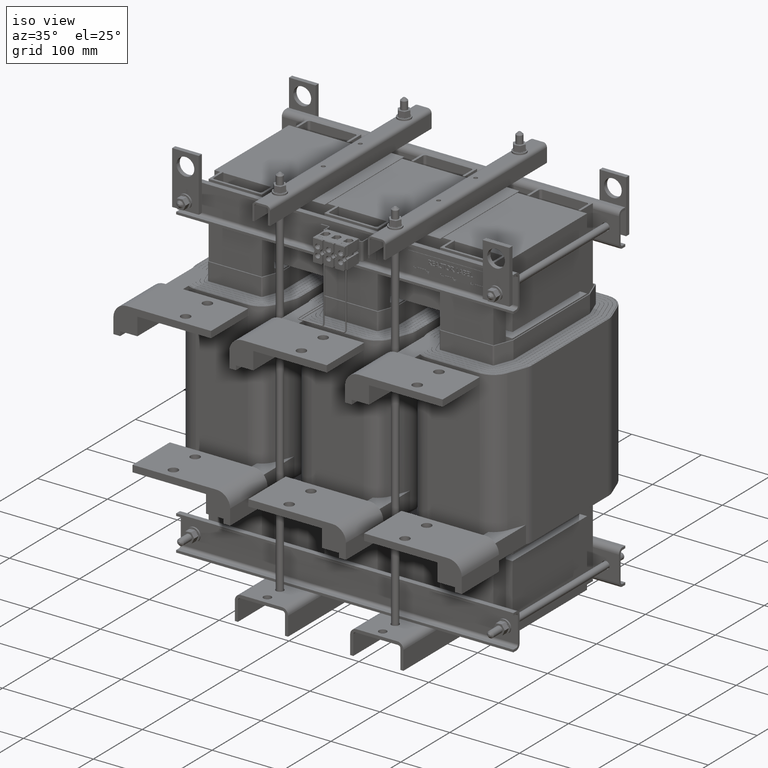
[diagram: clean part render]
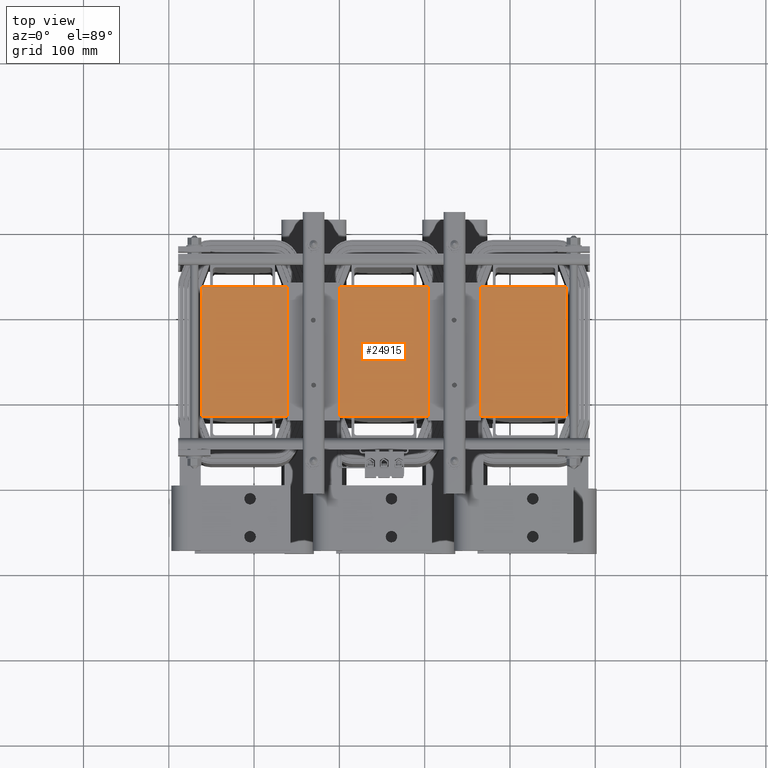
[diagram: tour spotlight — one face highlighted and labeled with its STEP entity id]
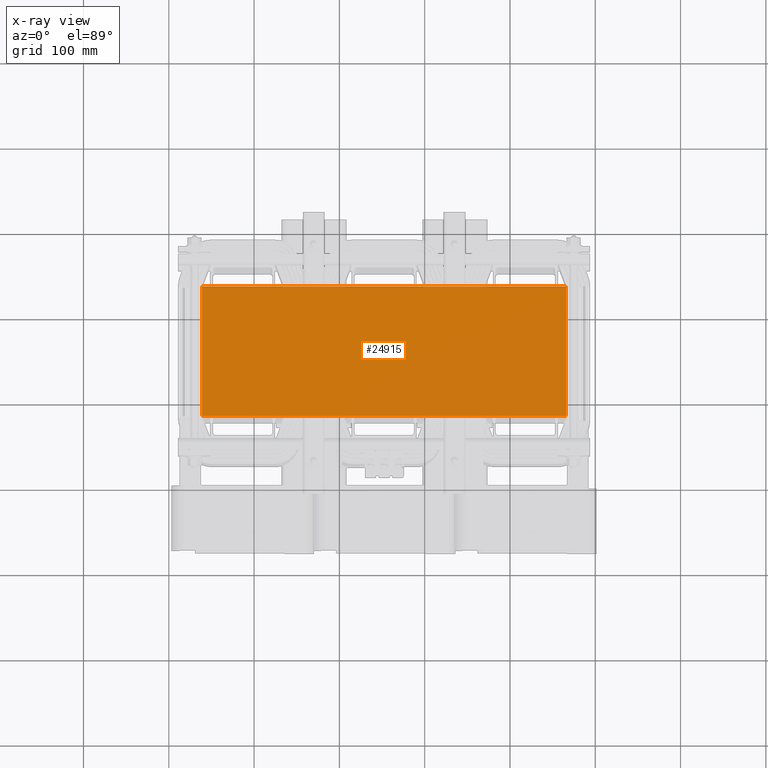
[diagram: x-ray of the same camera — body ghosted, this tour face saturated]
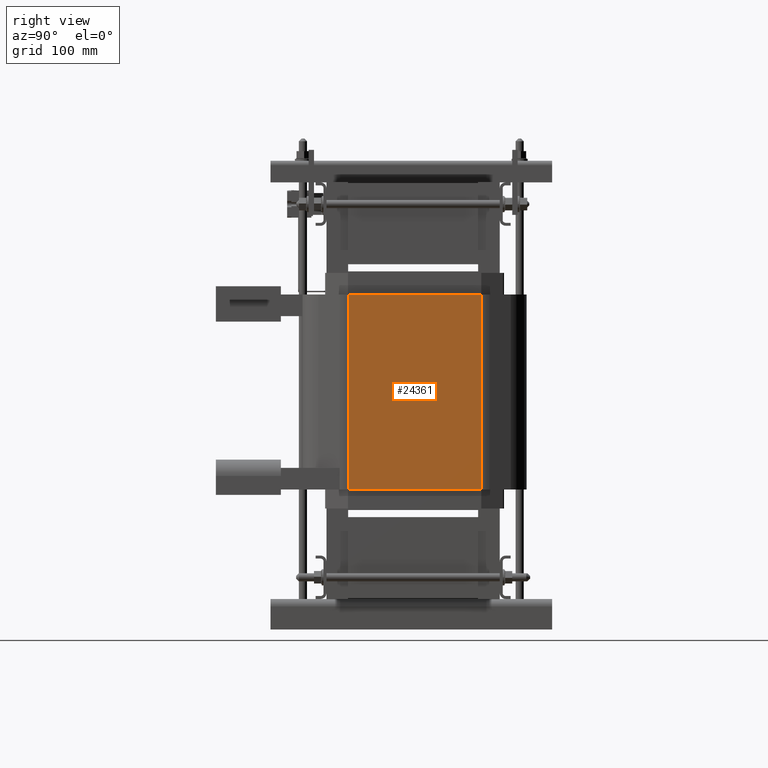
[diagram: tour spotlight — one face highlighted and labeled with its STEP entity id]
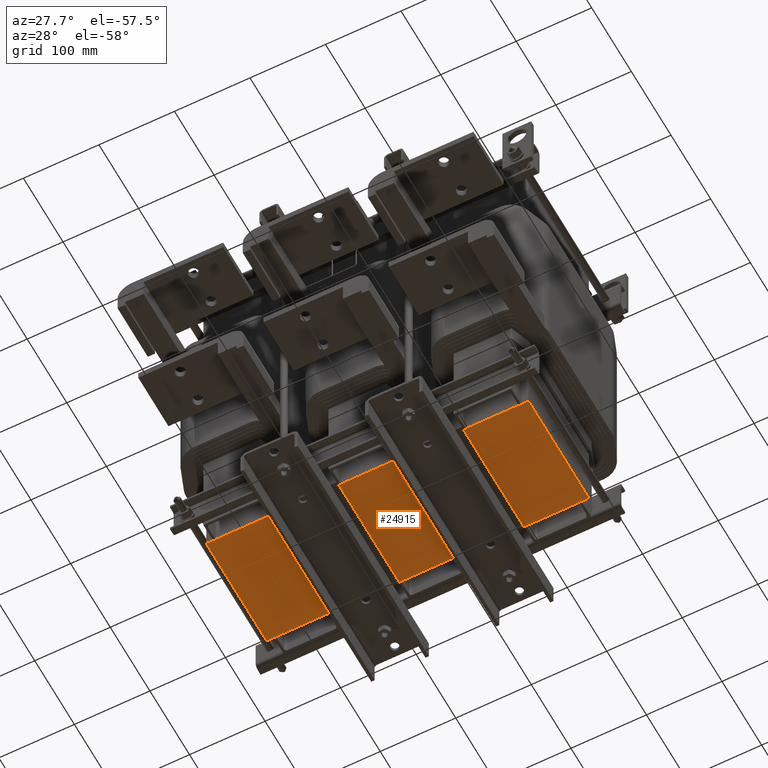
[diagram: tour spotlight — one face highlighted and labeled with its STEP entity id]
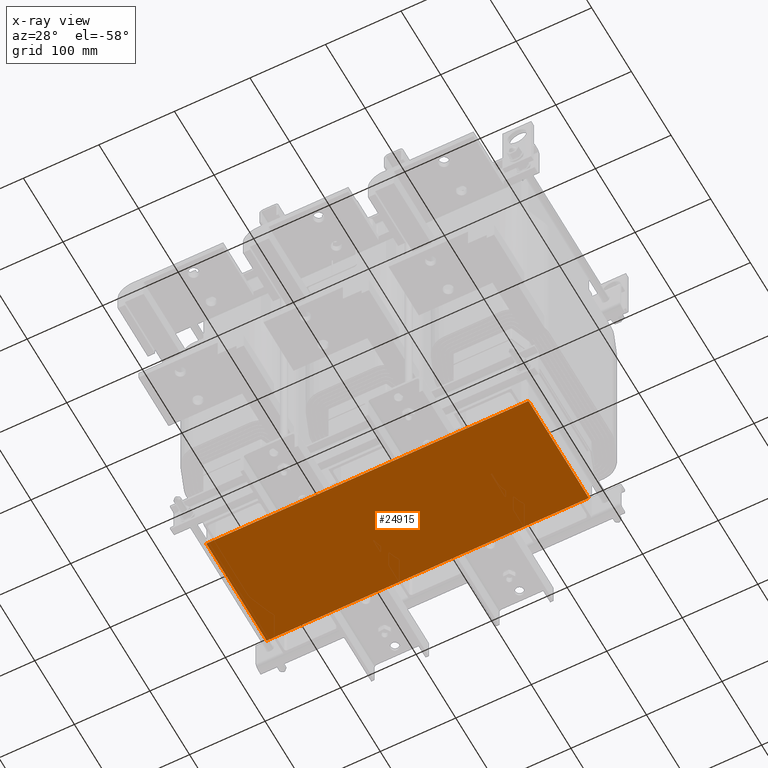
[diagram: x-ray of the same camera — body ghosted, this tour face saturated]
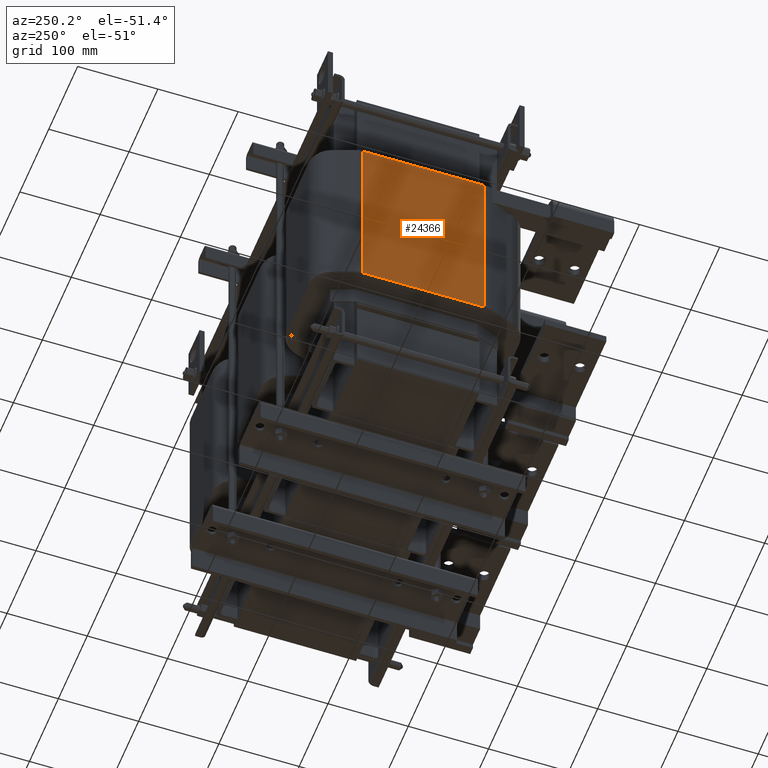
[diagram: tour spotlight — one face highlighted and labeled with its STEP entity id]
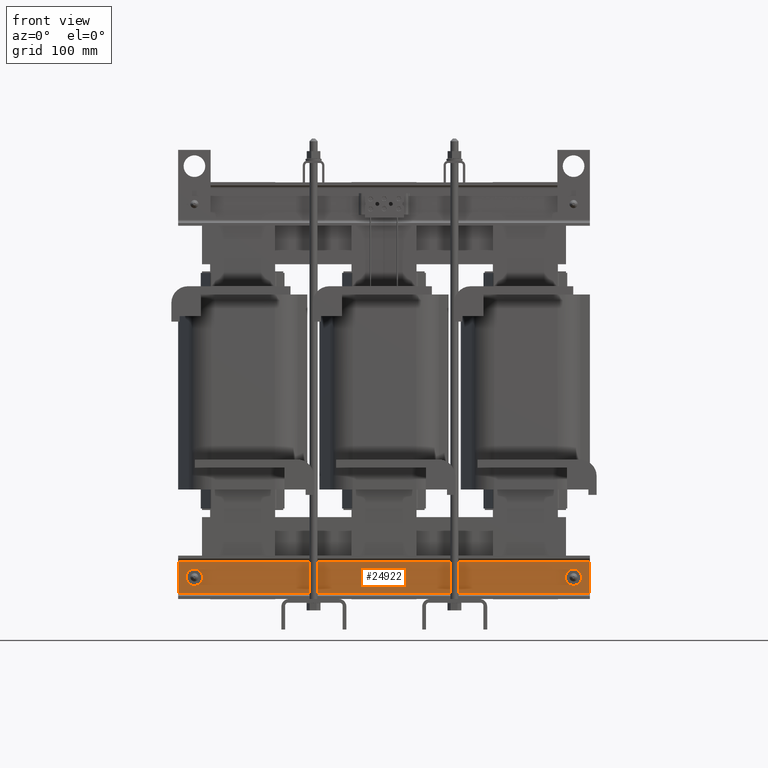
[diagram: tour spotlight — one face highlighted and labeled with its STEP entity id]
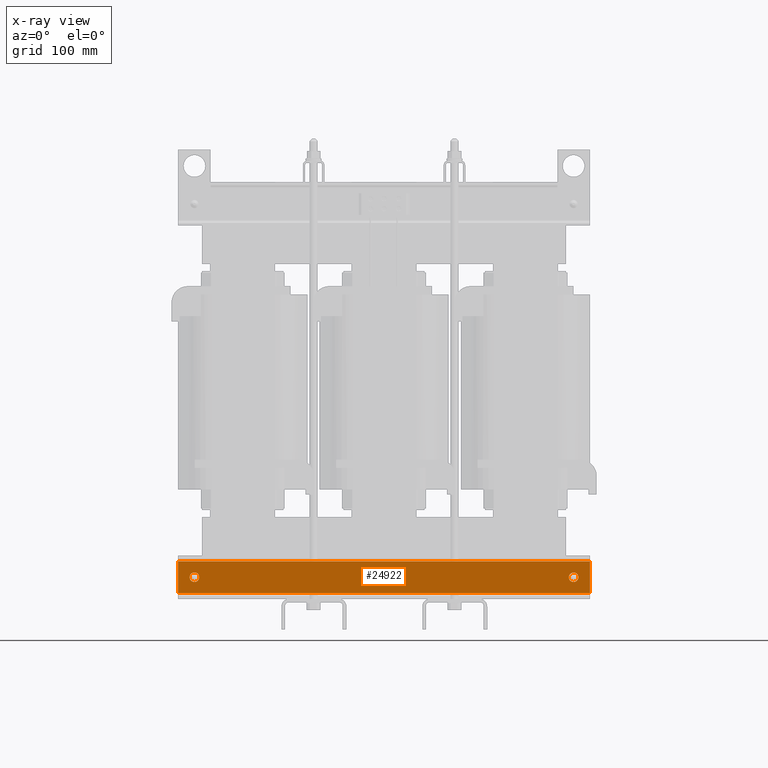
[diagram: x-ray of the same camera — body ghosted, this tour face saturated]
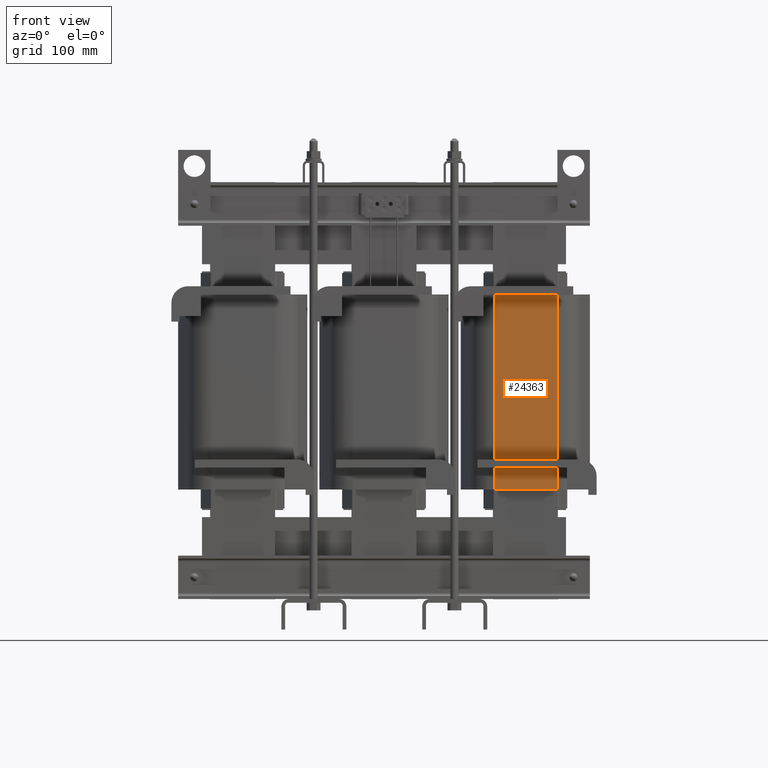
[diagram: tour spotlight — one face highlighted and labeled with its STEP entity id]
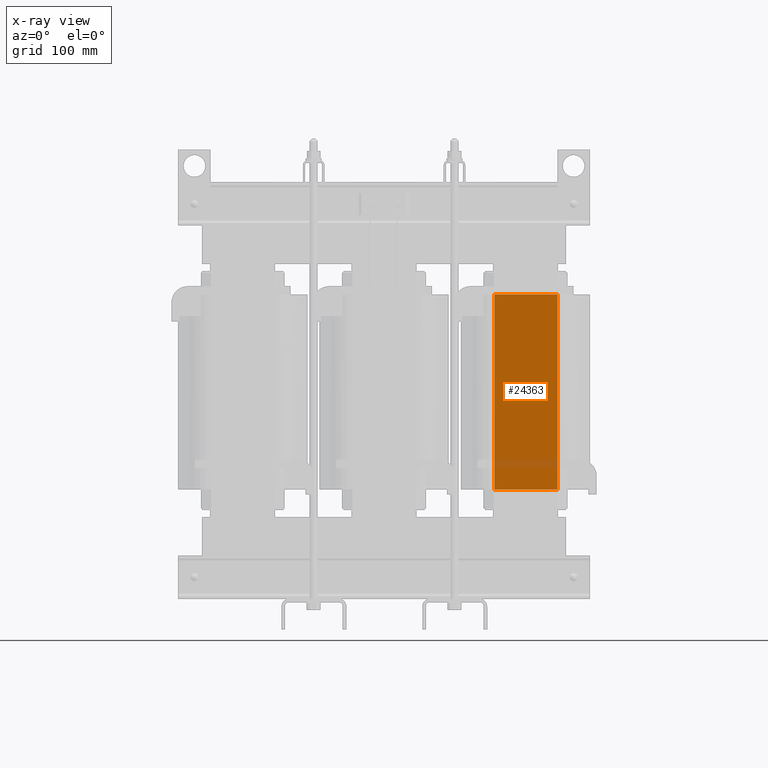
[diagram: x-ray of the same camera — body ghosted, this tour face saturated]
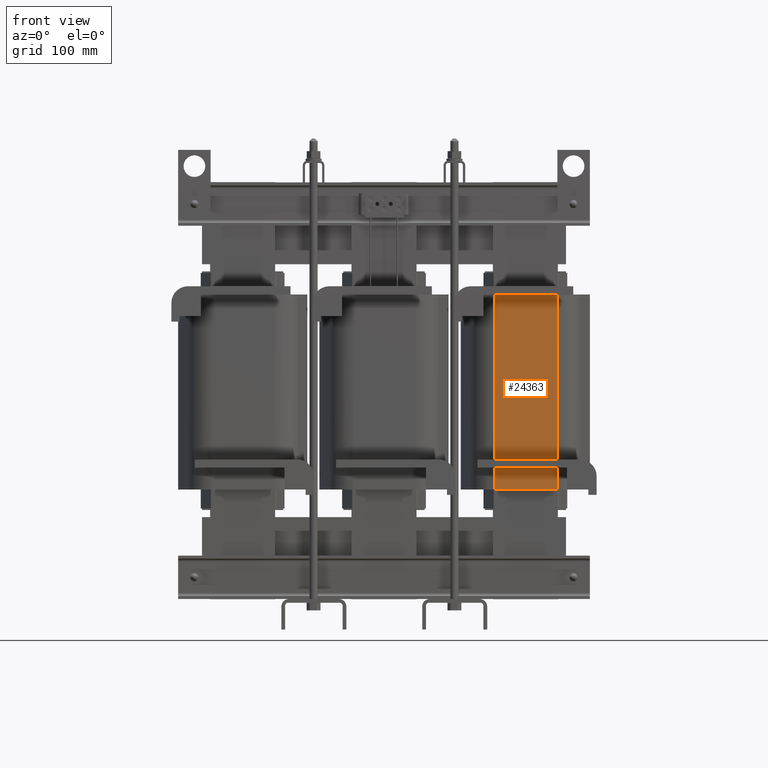
[diagram: tour spotlight — one face highlighted and labeled with its STEP entity id]
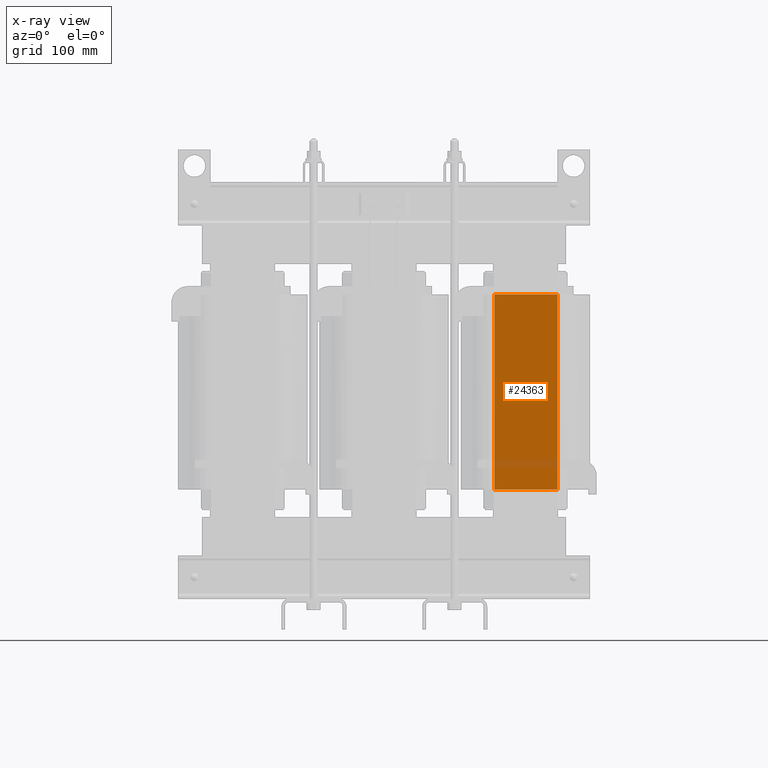
[diagram: x-ray of the same camera — body ghosted, this tour face saturated]
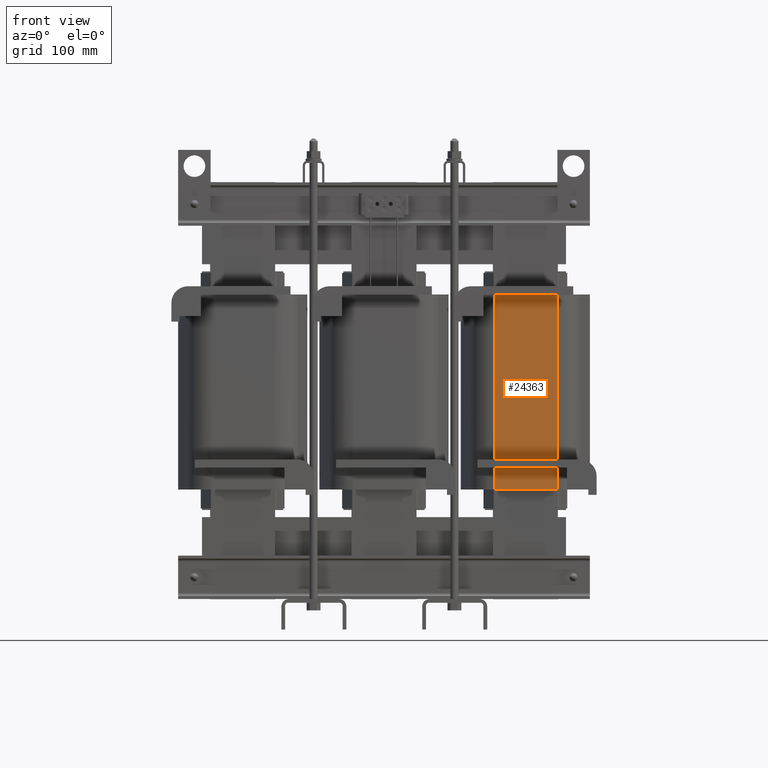
[diagram: tour spotlight — one face highlighted and labeled with its STEP entity id]
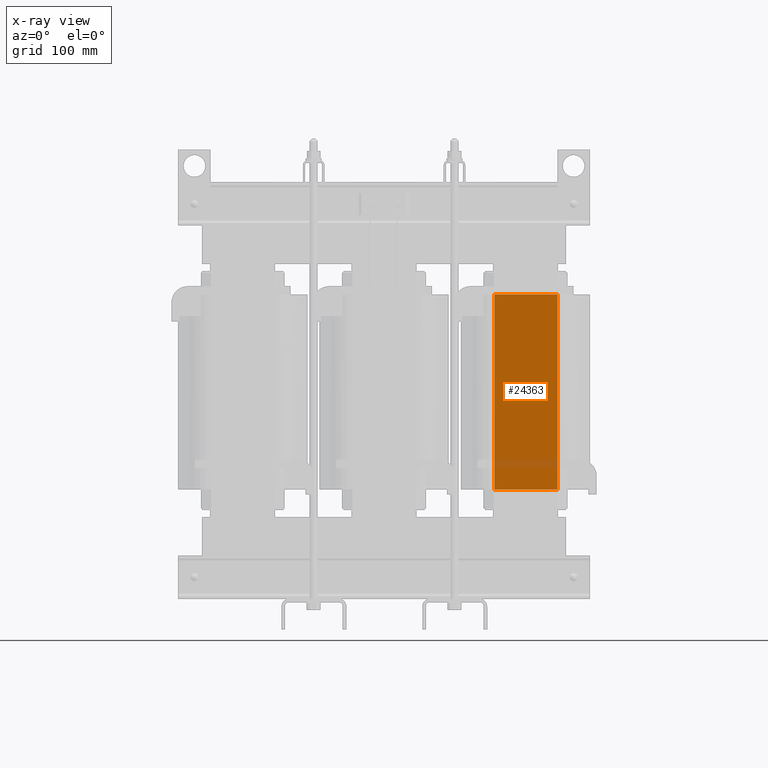
[diagram: x-ray of the same camera — body ghosted, this tour face saturated]
A machine part: a face-by-face anatomy tour. The part has 4858 B-rep faces; the first image is the clean iso view, then the 8 largest visible faces are spotlighted one at a time (largest first), each with its STEP entity span.

Face 1 — top view, entity #24915. An x-ray twin of the same camera follows (body ghosted, this face saturated) — the face is partly hidden behind the body. In plain terms, the highlighted planar face has unit normal (0, 0, 1).
Definition (entity closure, byte-faithful):
#3801=FACE_OUTER_BOUND('',#5235,.T.);
#5235=EDGE_LOOP('',(#22793,#22794,#22795,#22796));
#7569=LINE('',#45931,#9922);
#7574=LINE('',#45940,#9927);
#7578=LINE('',#45948,#9931);
#7579=LINE('',#45950,#9932);
#9922=VECTOR('',#33659,0.393700787401575);
#9927=VECTOR('',#33666,0.393700787401575);
#9931=VECTOR('',#33674,0.393700787401575);
#9932=VECTOR('',#33677,0.393700787401575);
#12250=VERTEX_POINT('',#45927);
#12252=VERTEX_POINT('',#45930);
#12254=VERTEX_POINT('',#45936);
#12257=VERTEX_POINT('',#45946);
#15766=EDGE_CURVE('',#12252,#12250,#7569,.T.);
#15771=EDGE_CURVE('',#12254,#12252,#7574,.T.);
#15775=EDGE_CURVE('',#12250,#12257,#7578,.T.);
#15776=EDGE_CURVE('',#12257,#12254,#7579,.T.);
#22793=ORIENTED_EDGE('',*,*,#15776,.T.);
#22794=ORIENTED_EDGE('',*,*,#15771,.T.);
#22795=ORIENTED_EDGE('',*,*,#15766,.T.);
#22796=ORIENTED_EDGE('',*,*,#15775,.T.);
#23618=PLANE('',#27467);
#24915=ADVANCED_FACE('',(#3801),#23618,.T.);
#27467=AXIS2_PLACEMENT_3D('',#45949,#33675,#33676);
#33659=DIRECTION('',(1.,2.3311769545935E-16,0.));
#33666=DIRECTION('',(0.,0.,-1.));
#33674=DIRECTION('',(0.,0.,1.));
#33675=DIRECTION('center_axis',(2.3311769545935E-16,-1.,0.));
#33676=DIRECTION('ref_axis',(0.,0.,-1.));
#33677=DIRECTION('',(-1.,-2.3311769545935E-16,0.));
#45927=CARTESIAN_POINT('',(5.28343163193425,-2.57878130576136,-8.4));
#45930=CARTESIAN_POINT('',(-0.716568368065751,-2.57878130576136,-8.4));
#45931=CARTESIAN_POINT('',(5.28343163193425,-2.57878130576136,-8.4));
#45936=CARTESIAN_POINT('',(-0.716568368065751,-2.57878130576136,8.4));
#45940=CARTESIAN_POINT('',(-0.716568368065751,-2.57878130576136,0.));
#45946=CARTESIAN_POINT('',(5.28343163193425,-2.57878130576136,8.4));
#45948=CARTESIAN_POINT('',(5.28343163193425,-2.57878130576136,0.));
#45949=CARTESIAN_POINT('Origin',(5.28343163193425,-2.57878130576136,0.));
#45950=CARTESIAN_POINT('',(5.28343163193425,-2.57878130576136,8.4));

Face 2 — right view, entity #24361. In plain terms, the highlighted planar face has unit normal (1, -0, -0).
Definition (entity closure, byte-faithful):
#3247=FACE_OUTER_BOUND('',#4620,.T.);
#4620=EDGE_LOOP('',(#19779,#19780,#19781,#19782));
#6653=LINE('',#40427,#9006);
#6723=LINE('',#40663,#9076);
#6724=LINE('',#40666,#9077);
#6725=LINE('',#40667,#9078);
#9006=VECTOR('',#30643,0.393700787401575);
#9076=VECTOR('',#30859,0.393700787401575);
#9077=VECTOR('',#30862,0.393700787401575);
#9078=VECTOR('',#30863,0.393700787401575);
#11296=VERTEX_POINT('',#40424);
#11297=VERTEX_POINT('',#40426);
#11390=VERTEX_POINT('',#40661);
#11391=VERTEX_POINT('',#40665);
#14265=EDGE_CURVE('',#11297,#11296,#6653,.T.);
#14387=EDGE_CURVE('',#11390,#11296,#6723,.T.);
#14388=EDGE_CURVE('',#11390,#11391,#6724,.T.);
#14389=EDGE_CURVE('',#11391,#11297,#6725,.T.);
#19779=ORIENTED_EDGE('',*,*,#14388,.T.);
#19780=ORIENTED_EDGE('',*,*,#14389,.T.);
#19781=ORIENTED_EDGE('',*,*,#14265,.T.);
#19782=ORIENTED_EDGE('',*,*,#14387,.F.);
#23330=PLANE('',#26487);
#24361=ADVANCED_FACE('',(#3247),#23330,.T.);
#26487=AXIS2_PLACEMENT_3D('',#40664,#30860,#30861);
#30643=DIRECTION('',(2.3368862041956E-11,1.,0.));
#30859=DIRECTION('',(0.,0.,-1.));
#30860=DIRECTION('center_axis',(1.,-2.3368862041956E-11,0.));
#30861=DIRECTION('ref_axis',(0.,0.,-1.));
#30862=DIRECTION('',(-2.3368862041956E-11,-1.,0.));
#30863=DIRECTION('',(0.,0.,-1.));
#40424=CARTESIAN_POINT('',(4.86274687953877,6.02279484937046,-4.5));
#40426=CARTESIAN_POINT('',(4.86274687939563,-0.102453898191004,-4.5));
#40427=CARTESIAN_POINT('',(4.86274687953877,6.02279484937046,-4.5));
#40661=CARTESIAN_POINT('',(4.86274687953877,6.02279484937046,4.5));
#40663=CARTESIAN_POINT('',(4.86274687953877,6.02279484937046,0.));
#40664=CARTESIAN_POINT('Origin',(4.86274687953877,6.02279484937046,0.));
#40665=CARTESIAN_POINT('',(4.86274687939563,-0.102453898191004,4.5));
#40666=CARTESIAN_POINT('',(4.86274687953877,6.02279484937046,4.5));
#40667=CARTESIAN_POINT('',(4.86274687939563,-0.102453898191004,0.));

Face 3 — auxiliary view, entity #24915. An x-ray twin of the same camera follows (body ghosted, this face saturated) — the face is partly hidden behind the body. In plain terms, the highlighted planar face has unit normal (0, 0, -1).
Definition (entity closure, byte-faithful):
#3801=FACE_OUTER_BOUND('',#5235,.T.);
#5235=EDGE_LOOP('',(#22793,#22794,#22795,#22796));
#7569=LINE('',#45931,#9922);
#7574=LINE('',#45940,#9927);
#7578=LINE('',#45948,#9931);
#7579=LINE('',#45950,#9932);
#9922=VECTOR('',#33659,0.393700787401575);
#9927=VECTOR('',#33666,0.393700787401575);
#9931=VECTOR('',#33674,0.393700787401575);
#9932=VECTOR('',#33677,0.393700787401575);
#12250=VERTEX_POINT('',#45927);
#12252=VERTEX_POINT('',#45930);
#12254=VERTEX_POINT('',#45936);
#12257=VERTEX_POINT('',#45946);
#15766=EDGE_CURVE('',#12252,#12250,#7569,.T.);
#15771=EDGE_CURVE('',#12254,#12252,#7574,.T.);
#15775=EDGE_CURVE('',#12250,#12257,#7578,.T.);
#15776=EDGE_CURVE('',#12257,#12254,#7579,.T.);
#22793=ORIENTED_EDGE('',*,*,#15776,.T.);
#22794=ORIENTED_EDGE('',*,*,#15771,.T.);
#22795=ORIENTED_EDGE('',*,*,#15766,.T.);
#22796=ORIENTED_EDGE('',*,*,#15775,.T.);
#23618=PLANE('',#27467);
#24915=ADVANCED_FACE('',(#3801),#23618,.T.);
#27467=AXIS2_PLACEMENT_3D('',#45949,#33675,#33676);
#33659=DIRECTION('',(1.,2.3311769545935E-16,0.));
#33666=DIRECTION('',(0.,0.,-1.));
#33674=DIRECTION('',(0.,0.,1.));
#33675=DIRECTION('center_axis',(2.3311769545935E-16,-1.,0.));
#33676=DIRECTION('ref_axis',(0.,0.,-1.));
#33677=DIRECTION('',(-1.,-2.3311769545935E-16,0.));
#45927=CARTESIAN_POINT('',(5.28343163193425,-2.57878130576136,-8.4));
#45930=CARTESIAN_POINT('',(-0.716568368065751,-2.57878130576136,-8.4));
#45931=CARTESIAN_POINT('',(5.28343163193425,-2.57878130576136,-8.4));
#45936=CARTESIAN_POINT('',(-0.716568368065751,-2.57878130576136,8.4));
#45940=CARTESIAN_POINT('',(-0.716568368065751,-2.57878130576136,0.));
#45946=CARTESIAN_POINT('',(5.28343163193425,-2.57878130576136,8.4));
#45948=CARTESIAN_POINT('',(5.28343163193425,-2.57878130576136,0.));
#45949=CARTESIAN_POINT('Origin',(5.28343163193425,-2.57878130576136,0.));
#45950=CARTESIAN_POINT('',(5.28343163193425,-2.57878130576136,8.4));

Face 4 — auxiliary view, entity #24366. In plain terms, the highlighted planar face has unit normal (-1, 0, 0).
Definition (entity closure, byte-faithful):
#3252=FACE_OUTER_BOUND('',#4625,.T.);
#4625=EDGE_LOOP('',(#19801,#19802,#19803,#19804));
#6649=LINE('',#40411,#9002);
#6728=LINE('',#40677,#9081);
#6729=LINE('',#40680,#9082);
#6730=LINE('',#40681,#9083);
#9002=VECTOR('',#30631,0.393700787401575);
#9081=VECTOR('',#30878,0.393700787401575);
#9082=VECTOR('',#30881,0.393700787401575);
#9083=VECTOR('',#30882,0.393700787401575);
#11288=VERTEX_POINT('',#40408);
#11289=VERTEX_POINT('',#40410);
#11392=VERTEX_POINT('',#40675);
#11393=VERTEX_POINT('',#40679);
#14257=EDGE_CURVE('',#11289,#11288,#6649,.T.);
#14394=EDGE_CURVE('',#11392,#11288,#6728,.T.);
#14395=EDGE_CURVE('',#11392,#11393,#6729,.T.);
#14396=EDGE_CURVE('',#11393,#11289,#6730,.T.);
#19801=ORIENTED_EDGE('',*,*,#14395,.T.);
#19802=ORIENTED_EDGE('',*,*,#14396,.T.);
#19803=ORIENTED_EDGE('',*,*,#14257,.T.);
#19804=ORIENTED_EDGE('',*,*,#14394,.F.);
#23333=PLANE('',#26494);
#24366=ADVANCED_FACE('',(#3252),#23333,.T.);
#26494=AXIS2_PLACEMENT_3D('',#40678,#30879,#30880);
#30631=DIRECTION('',(-6.41827127960588E-11,-1.,0.));
#30878=DIRECTION('',(0.,0.,-1.));
#30879=DIRECTION('center_axis',(-1.,6.41827127960588E-11,0.));
#30880=DIRECTION('ref_axis',(0.,0.,1.));
#30881=DIRECTION('',(6.41827127960588E-11,1.,0.));
#30882=DIRECTION('',(0.,0.,-1.));
#40408=CARTESIAN_POINT('',(-1.09725312072846,0.0300482361703543,-4.5));
#40410=CARTESIAN_POINT('',(-1.09725312034383,6.02279485289849,-4.5));
#40411=CARTESIAN_POINT('',(-1.09725312072846,0.0300482361703543,-4.5));
#40675=CARTESIAN_POINT('',(-1.09725312072846,0.0300482361703543,4.5));
#40677=CARTESIAN_POINT('',(-1.09725312072846,0.0300482361703543,0.));
#40678=CARTESIAN_POINT('Origin',(-1.09725312072846,0.0300482361703543,0.));
#40679=CARTESIAN_POINT('',(-1.09725312034383,6.02279485289849,4.5));
#40680=CARTESIAN_POINT('',(-1.09725312072846,0.0300482361703543,4.5));
#40681=CARTESIAN_POINT('',(-1.09725312034383,6.02279485289849,0.));

Face 5 — front view, entity #24922. An x-ray twin of the same camera follows (body ghosted, this face saturated) — the face is partly hidden behind the body. In plain terms, the highlighted planar face has unit normal (-0, -1, 0).
Definition (entity closure, byte-faithful):
#1248=FACE_BOUND('',#5243,.T.);
#1249=FACE_BOUND('',#5244,.T.);
#1981=CIRCLE('',#27471,0.22);
#1983=CIRCLE('',#27474,0.22);
#3808=FACE_OUTER_BOUND('',#5242,.T.);
#5242=EDGE_LOOP('',(#22829,#22830,#22831,#22832));
#5243=EDGE_LOOP('',(#22833));
#5244=EDGE_LOOP('',(#22834));
#7585=LINE('',#45976,#9938);
#7593=LINE('',#45999,#9946);
#7594=LINE('',#46002,#9947);
#7595=LINE('',#46003,#9948);
#9938=VECTOR('',#33703,0.393700787401575);
#9946=VECTOR('',#33723,0.393700787401575);
#9947=VECTOR('',#33726,0.393700787401575);
#9948=VECTOR('',#33727,0.393700787401575);
#12258=VERTEX_POINT('',#45954);
#12260=VERTEX_POINT('',#45960);
#12266=VERTEX_POINT('',#45973);
#12267=VERTEX_POINT('',#45975);
#12276=VERTEX_POINT('',#45997);
#12277=VERTEX_POINT('',#46001);
#15777=EDGE_CURVE('',#12258,#12258,#1981,.T.);
#15780=EDGE_CURVE('',#12260,#12260,#1983,.T.);
#15787=EDGE_CURVE('',#12267,#12266,#7585,.T.);
#15799=EDGE_CURVE('',#12276,#12266,#7593,.T.);
#15800=EDGE_CURVE('',#12276,#12277,#7594,.T.);
#15801=EDGE_CURVE('',#12277,#12267,#7595,.T.);
#22829=ORIENTED_EDGE('',*,*,#15800,.T.);
#22830=ORIENTED_EDGE('',*,*,#15801,.T.);
#22831=ORIENTED_EDGE('',*,*,#15787,.T.);
#22832=ORIENTED_EDGE('',*,*,#15799,.F.);
#22833=ORIENTED_EDGE('',*,*,#15777,.T.);
#22834=ORIENTED_EDGE('',*,*,#15780,.T.);
#23622=PLANE('',#27484);
#24922=ADVANCED_FACE('',(#3808,#1248,#1249),#23622,.T.);
#27471=AXIS2_PLACEMENT_3D('',#45955,#33684,#33685);
#27474=AXIS2_PLACEMENT_3D('',#45961,#33691,#33692);
#27484=AXIS2_PLACEMENT_3D('',#46000,#33724,#33725);
#33684=DIRECTION('center_axis',(1.,0.,0.));
#33685=DIRECTION('ref_axis',(0.,0.,-1.));
#33691=DIRECTION('center_axis',(1.,0.,0.));
#33692=DIRECTION('ref_axis',(0.,0.,-1.));
#33703=DIRECTION('',(0.,-1.,0.));
#33723=DIRECTION('',(0.,0.,-1.));
#33724=DIRECTION('center_axis',(-1.,0.,0.));
#33725=DIRECTION('ref_axis',(0.,0.,1.));
#33726=DIRECTION('',(0.,1.,0.));
#33727=DIRECTION('',(0.,0.,-1.));
#45954=CARTESIAN_POINT('',(-0.145726098603873,0.178006333761438,8.97));
#45955=CARTESIAN_POINT('Origin',(-0.145726098603873,0.178006333761438,8.75));
#45960=CARTESIAN_POINT('',(-0.145726098603873,0.178006333761438,-8.53));
#45961=CARTESIAN_POINT('Origin',(-0.145726098603873,0.178006333761438,-8.75));
#45973=CARTESIAN_POINT('',(-0.145726098603873,-0.552993666238564,-9.5));
#45975=CARTESIAN_POINT('',(-0.145726098603873,0.90900633376144,-9.5));
#45976=CARTESIAN_POINT('',(-0.145726098603873,-0.552993666238564,-9.5));
#45997=CARTESIAN_POINT('',(-0.145726098603873,-0.552993666238564,9.5));
#45999=CARTESIAN_POINT('',(-0.145726098603873,-0.552993666238564,0.));
#46000=CARTESIAN_POINT('Origin',(-0.145726098603873,-0.552993666238564,
0.));
#46001=CARTESIAN_POINT('',(-0.145726098603873,0.90900633376144,9.5));
#46002=CARTESIAN_POINT('',(-0.145726098603873,-0.552993666238564,9.5));
#46003=CARTESIAN_POINT('',(-0.145726098603873,0.90900633376144,0.));

Face 6 — front view, entity #24363. An x-ray twin of the same camera follows (body ghosted, this face saturated) — the face is partly hidden behind the body. In plain terms, the highlighted planar face has unit normal (-0, -1, 0).
Definition (entity closure, byte-faithful):
#3249=FACE_OUTER_BOUND('',#4622,.T.);
#4622=EDGE_LOOP('',(#19788,#19789,#19790,#19791));
#6644=LINE('',#40395,#8997);
#6647=LINE('',#40403,#9000);
#6696=LINE('',#40590,#9049);
#6726=LINE('',#40671,#9079);
#8997=VECTOR('',#30616,0.393700787401575);
#9000=VECTOR('',#30625,0.393700787401575);
#9049=VECTOR('',#30776,0.393700787401575);
#9079=VECTOR('',#30870,0.393700787401575);
#11282=VERTEX_POINT('',#40392);
#11283=VERTEX_POINT('',#40394);
#11285=VERTEX_POINT('',#40402);
#11372=VERTEX_POINT('',#40589);
#14249=EDGE_CURVE('',#11282,#11283,#6644,.T.);
#14253=EDGE_CURVE('',#11285,#11283,#6647,.T.);
#14350=EDGE_CURVE('',#11372,#11285,#6696,.T.);
#14391=EDGE_CURVE('',#11282,#11372,#6726,.T.);
#19788=ORIENTED_EDGE('',*,*,#14391,.T.);
#19789=ORIENTED_EDGE('',*,*,#14350,.T.);
#19790=ORIENTED_EDGE('',*,*,#14253,.T.);
#19791=ORIENTED_EDGE('',*,*,#14249,.F.);
#23331=PLANE('',#26490);
#24363=ADVANCED_FACE('',(#3249),#23331,.T.);
#26490=AXIS2_PLACEMENT_3D('',#40670,#30868,#30869);
#30616=DIRECTION('',(0.,0.,-1.));
#30625=DIRECTION('',(1.,-1.19187276654078E-9,0.));
#30776=DIRECTION('',(0.,0.,-1.));
#30868=DIRECTION('center_axis',(-1.19187276654078E-9,-1.,0.));
#30869=DIRECTION('ref_axis',(0.,0.,-1.));
#30870=DIRECTION('',(-1.,1.19187276654078E-9,0.));
#40392=CARTESIAN_POINT('',(3.3688868675213,-2.21108058936056,4.5));
#40394=CARTESIAN_POINT('',(3.3688868675213,-2.21108058936056,-4.5));
#40395=CARTESIAN_POINT('',(3.3688868675213,-2.21108058936056,0.));
#40402=CARTESIAN_POINT('',(0.446295184662311,-2.2110805858772,-4.5));
#40403=CARTESIAN_POINT('',(3.3688868675213,-2.21108058936056,-4.5));
#40589=CARTESIAN_POINT('',(0.446295184662311,-2.2110805858772,4.5));
#40590=CARTESIAN_POINT('',(0.446295184662311,-2.2110805858772,0.));
#40670=CARTESIAN_POINT('Origin',(3.3688868675213,-2.21108058936056,0.));
#40671=CARTESIAN_POINT('',(3.3688868675213,-2.21108058936056,4.5));

Face 7 — front view, entity #24363. An x-ray twin of the same camera follows (body ghosted, this face saturated) — the face is partly hidden behind the body. In plain terms, the highlighted planar face has unit normal (-0, -1, 0).
Definition (entity closure, byte-faithful):
#3249=FACE_OUTER_BOUND('',#4622,.T.);
#4622=EDGE_LOOP('',(#19788,#19789,#19790,#19791));
#6644=LINE('',#40395,#8997);
#6647=LINE('',#40403,#9000);
#6696=LINE('',#40590,#9049);
#6726=LINE('',#40671,#9079);
#8997=VECTOR('',#30616,0.393700787401575);
#9000=VECTOR('',#30625,0.393700787401575);
#9049=VECTOR('',#30776,0.393700787401575);
#9079=VECTOR('',#30870,0.393700787401575);
#11282=VERTEX_POINT('',#40392);
#11283=VERTEX_POINT('',#40394);
#11285=VERTEX_POINT('',#40402);
#11372=VERTEX_POINT('',#40589);
#14249=EDGE_CURVE('',#11282,#11283,#6644,.T.);
#14253=EDGE_CURVE('',#11285,#11283,#6647,.T.);
#14350=EDGE_CURVE('',#11372,#11285,#6696,.T.);
#14391=EDGE_CURVE('',#11282,#11372,#6726,.T.);
#19788=ORIENTED_EDGE('',*,*,#14391,.T.);
#19789=ORIENTED_EDGE('',*,*,#14350,.T.);
#19790=ORIENTED_EDGE('',*,*,#14253,.T.);
#19791=ORIENTED_EDGE('',*,*,#14249,.F.);
#23331=PLANE('',#26490);
#24363=ADVANCED_FACE('',(#3249),#23331,.T.);
#26490=AXIS2_PLACEMENT_3D('',#40670,#30868,#30869);
#30616=DIRECTION('',(0.,0.,-1.));
#30625=DIRECTION('',(1.,-1.19187276654078E-9,0.));
#30776=DIRECTION('',(0.,0.,-1.));
#30868=DIRECTION('center_axis',(-1.19187276654078E-9,-1.,0.));
#30869=DIRECTION('ref_axis',(0.,0.,-1.));
#30870=DIRECTION('',(-1.,1.19187276654078E-9,0.));
#40392=CARTESIAN_POINT('',(3.3688868675213,-2.21108058936056,4.5));
#40394=CARTESIAN_POINT('',(3.3688868675213,-2.21108058936056,-4.5));
#40395=CARTESIAN_POINT('',(3.3688868675213,-2.21108058936056,0.));
#40402=CARTESIAN_POINT('',(0.446295184662311,-2.2110805858772,-4.5));
#40403=CARTESIAN_POINT('',(3.3688868675213,-2.21108058936056,-4.5));
#40589=CARTESIAN_POINT('',(0.446295184662311,-2.2110805858772,4.5));
#40590=CARTESIAN_POINT('',(0.446295184662311,-2.2110805858772,0.));
#40670=CARTESIAN_POINT('Origin',(3.3688868675213,-2.21108058936056,0.));
#40671=CARTESIAN_POINT('',(3.3688868675213,-2.21108058936056,4.5));

Face 8 — front view, entity #24363. An x-ray twin of the same camera follows (body ghosted, this face saturated) — the face is partly hidden behind the body. In plain terms, the highlighted planar face has unit normal (-0, -1, 0).
Definition (entity closure, byte-faithful):
#3249=FACE_OUTER_BOUND('',#4622,.T.);
#4622=EDGE_LOOP('',(#19788,#19789,#19790,#19791));
#6644=LINE('',#40395,#8997);
#6647=LINE('',#40403,#9000);
#6696=LINE('',#40590,#9049);
#6726=LINE('',#40671,#9079);
#8997=VECTOR('',#30616,0.393700787401575);
#9000=VECTOR('',#30625,0.393700787401575);
#9049=VECTOR('',#30776,0.393700787401575);
#9079=VECTOR('',#30870,0.393700787401575);
#11282=VERTEX_POINT('',#40392);
#11283=VERTEX_POINT('',#40394);
#11285=VERTEX_POINT('',#40402);
#11372=VERTEX_POINT('',#40589);
#14249=EDGE_CURVE('',#11282,#11283,#6644,.T.);
#14253=EDGE_CURVE('',#11285,#11283,#6647,.T.);
#14350=EDGE_CURVE('',#11372,#11285,#6696,.T.);
#14391=EDGE_CURVE('',#11282,#11372,#6726,.T.);
#19788=ORIENTED_EDGE('',*,*,#14391,.T.);
#19789=ORIENTED_EDGE('',*,*,#14350,.T.);
#19790=ORIENTED_EDGE('',*,*,#14253,.T.);
#19791=ORIENTED_EDGE('',*,*,#14249,.F.);
#23331=PLANE('',#26490);
#24363=ADVANCED_FACE('',(#3249),#23331,.T.);
#26490=AXIS2_PLACEMENT_3D('',#40670,#30868,#30869);
#30616=DIRECTION('',(0.,0.,-1.));
#30625=DIRECTION('',(1.,-1.19187276654078E-9,0.));
#30776=DIRECTION('',(0.,0.,-1.));
#30868=DIRECTION('center_axis',(-1.19187276654078E-9,-1.,0.));
#30869=DIRECTION('ref_axis',(0.,0.,-1.));
#30870=DIRECTION('',(-1.,1.19187276654078E-9,0.));
#40392=CARTESIAN_POINT('',(3.3688868675213,-2.21108058936056,4.5));
#40394=CARTESIAN_POINT('',(3.3688868675213,-2.21108058936056,-4.5));
#40395=CARTESIAN_POINT('',(3.3688868675213,-2.21108058936056,0.));
#40402=CARTESIAN_POINT('',(0.446295184662311,-2.2110805858772,-4.5));
#40403=CARTESIAN_POINT('',(3.3688868675213,-2.21108058936056,-4.5));
#40589=CARTESIAN_POINT('',(0.446295184662311,-2.2110805858772,4.5));
#40590=CARTESIAN_POINT('',(0.446295184662311,-2.2110805858772,0.));
#40670=CARTESIAN_POINT('Origin',(3.3688868675213,-2.21108058936056,0.));
#40671=CARTESIAN_POINT('',(3.3688868675213,-2.21108058936056,4.5));